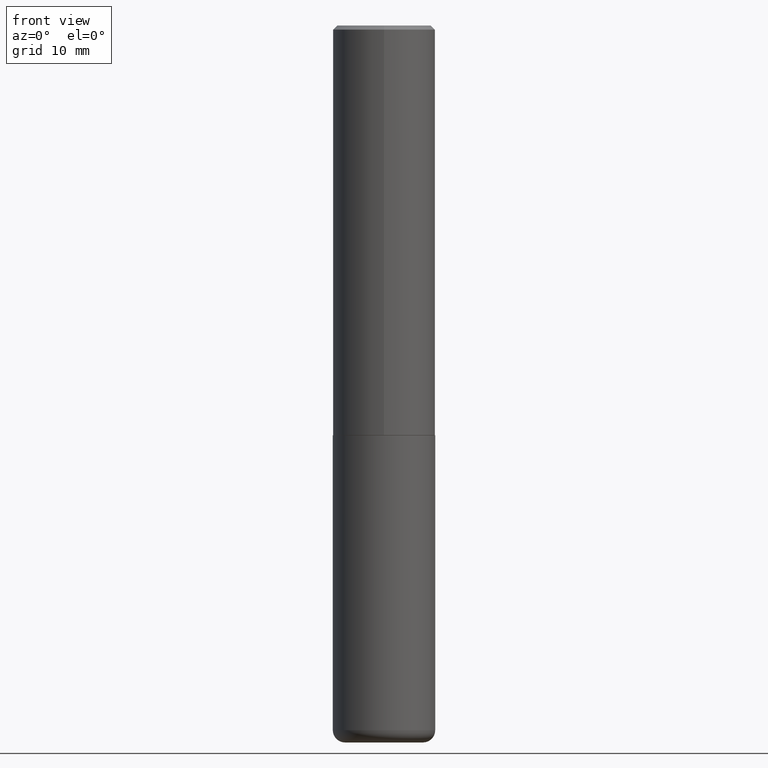
[diagram: clean part render]
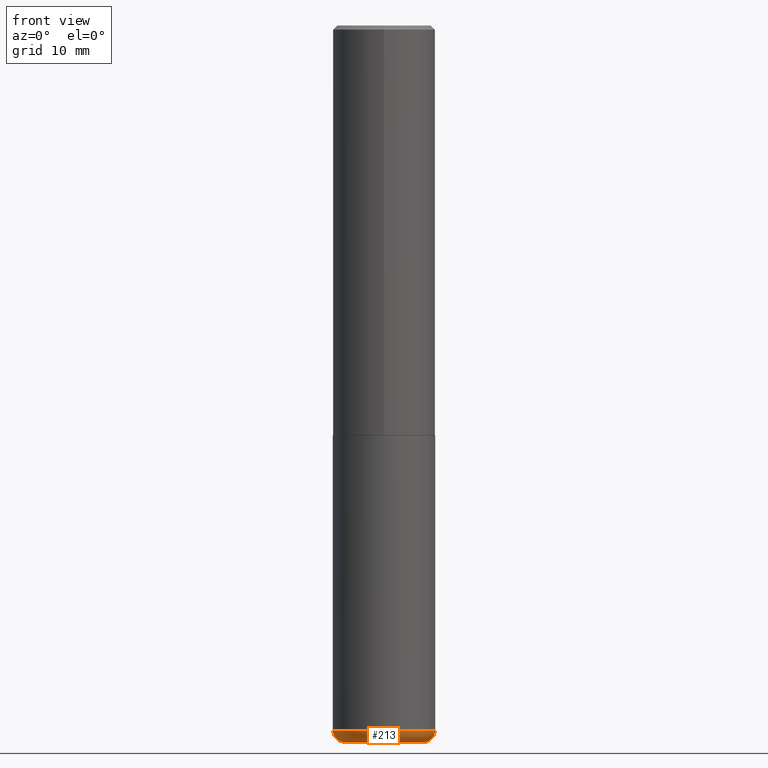
[diagram: same view with one face highlighted and labeled with its STEP entity id]
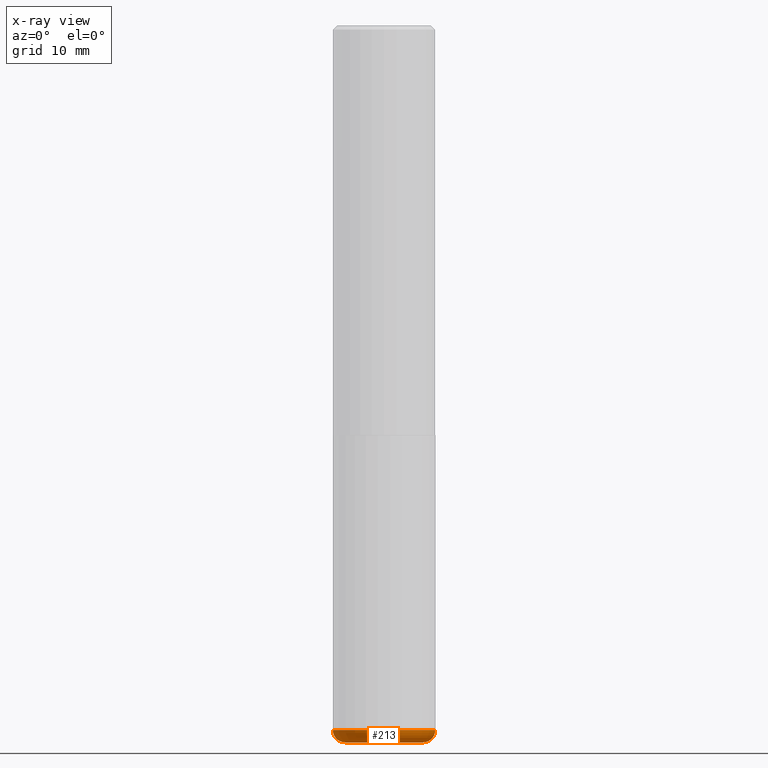
[diagram: x-ray of the same camera — body ghosted, the highlighted face saturated]
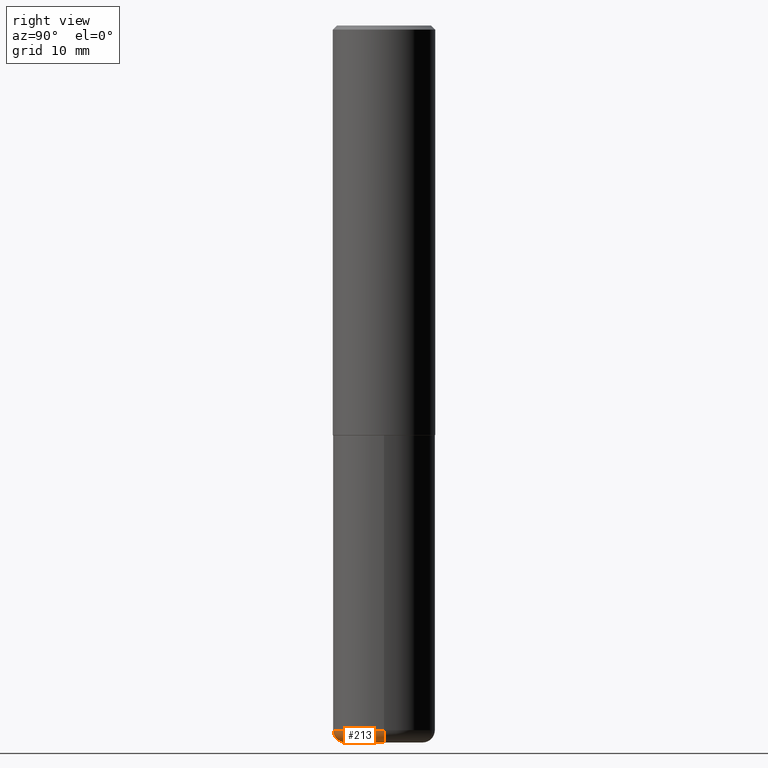
[diagram: same view with one face highlighted and labeled with its STEP entity id]
A machine part, front view. The second image highlights one B-rep face of the part: STEP entity #213.
The next image is the same camera in x-ray: the body ghosted, the highlighted face saturated — about 0% of this face is hidden behind the body in this view.
A second angle (right view) of the same face is appended — the face is thin or edge-on in the first view.
In plain terms, the highlighted toroidal blend (fillet) surface has major radius 4.826 mm and minor (blend) radius 1.524 mm.
Its self-contained STEP definition (entity closure, byte-faithful):
#2 = DIRECTION ( 'NONE',  ( -2.445468806185136597E-29, 3.491481338843145583E-15, 1.000000000000000000 ) ) ;
#18 = FACE_OUTER_BOUND ( 'NONE', #100, .T. ) ;
#27 = DIRECTION ( 'NONE',  ( -2.445468806185136597E-29, 3.491481338843145583E-15, 1.000000000000000000 ) ) ;
#31 = CARTESIAN_POINT ( 'NONE',  ( 8.559140821647976968E-29, -1.222018468595100934E-14, -3.500000000000000000 ) ) ;
#34 = DIRECTION ( 'NONE',  ( 1.000000000000000000, -6.982962677686273021E-15, 0.000000000000000000 ) ) ;
#37 = AXIS2_PLACEMENT_3D ( 'NONE', #340, #184, #63 ) ;
#45 = CARTESIAN_POINT ( 'NONE',  ( -0.1899999999999999745, -1.066066460767623105E-14, -3.439999999999999947 ) ) ;
#55 = EDGE_CURVE ( 'NONE', #339, #403, #157, .T. ) ;
#63 = DIRECTION ( 'NONE',  ( 1.000000000000000000, -6.982962677686274599E-15, 0.000000000000000000 ) ) ;
#64 = DIRECTION ( 'NONE',  ( 1.000000000000000000, -6.982962677686265133E-15, 4.883557194083112340E-29 ) ) ;
#69 = EDGE_CURVE ( 'NONE', #139, #110, #390, .T. ) ;
#82 = CIRCLE ( 'NONE', #37, 0.05999999999999994227 ) ;
#90 = ORIENTED_EDGE ( 'NONE', *, *, #55, .T. ) ;
#95 = CARTESIAN_POINT ( 'NONE',  ( -0.2499999999999999722, -1.023433896622016898E-14, -3.439999999999999947 ) ) ;
#100 = EDGE_LOOP ( 'NONE', ( #258, #90, #296, #417 ) ) ;
#101 = DIRECTION ( 'NONE',  ( 1.000000000000000000, -6.982962677686270655E-15, 0.000000000000000000 ) ) ;
#110 = VERTEX_POINT ( 'NONE', #318 ) ;
#130 = CARTESIAN_POINT ( 'NONE',  ( 8.412412693276869938E-29, -1.201069580562042103E-14, -3.439999999999999947 ) ) ;
#139 = VERTEX_POINT ( 'NONE', #95 ) ;
#157 = CIRCLE ( 'NONE', #259, 0.1899999999999999745 ) ;
#173 = DIRECTION ( 'NONE',  ( -2.445468806185136597E-29, 3.491481338843145583E-15, 1.000000000000000000 ) ) ;
#184 = DIRECTION ( 'NONE',  ( -6.982962677686266711E-15, -1.000000000000000000, 3.491481338843145583E-15 ) ) ;
#199 = EDGE_CURVE ( 'NONE', #339, #139, #311, .T. ) ;
#213 = ADVANCED_FACE ( 'NONE', ( #18 ), #361, .T. ) ;
#258 = ORIENTED_EDGE ( 'NONE', *, *, #199, .F. ) ;
#259 = AXIS2_PLACEMENT_3D ( 'NONE', #31, #2, #34 ) ;
#273 = CARTESIAN_POINT ( 'NONE',  ( 0.1899999999999999745, -1.354694759471140096E-14, -3.500000000000000000 ) ) ;
#296 = ORIENTED_EDGE ( 'NONE', *, *, #323, .T. ) ;
#306 = DIRECTION ( 'NONE',  ( -1.000000000000000000, 7.105427357600997914E-15, 0.000000000000000000 ) ) ;
#311 = CIRCLE ( 'NONE', #332, 0.05999999999999994227 ) ;
#318 = CARTESIAN_POINT ( 'NONE',  ( 0.2499999999999999722, -1.375643647504198770E-14, -3.439999999999999947 ) ) ;
#323 = EDGE_CURVE ( 'NONE', #403, #110, #82, .T. ) ;
#327 = AXIS2_PLACEMENT_3D ( 'NONE', #369, #173, #64 ) ;
#332 = AXIS2_PLACEMENT_3D ( 'NONE', #45, #344, #306 ) ;
#338 = CARTESIAN_POINT ( 'NONE',  ( -0.1899999999999999745, -1.055224622711349575E-14, -3.500000000000000000 ) ) ;
#339 = VERTEX_POINT ( 'NONE', #338 ) ;
#340 = CARTESIAN_POINT ( 'NONE',  ( 0.1899999999999999745, -1.333745871438081265E-14, -3.439999999999999947 ) ) ;
#344 = DIRECTION ( 'NONE',  ( 7.105427357601001859E-15, 1.000000000000000000, -3.491481338843145583E-15 ) ) ;
#358 = AXIS2_PLACEMENT_3D ( 'NONE', #130, #27, #101 ) ;
#361 = TOROIDAL_SURFACE ( 'NONE', #327, 0.1899999999999999745, 0.05999999999999995615 ) ;
#369 = CARTESIAN_POINT ( 'NONE',  ( 8.412412693276869938E-29, -1.201069580562042103E-14, -3.439999999999999947 ) ) ;
#390 = CIRCLE ( 'NONE', #358, 0.2500000000000000000 ) ;
#403 = VERTEX_POINT ( 'NONE', #273 ) ;
#417 = ORIENTED_EDGE ( 'NONE', *, *, #69, .F. ) ;